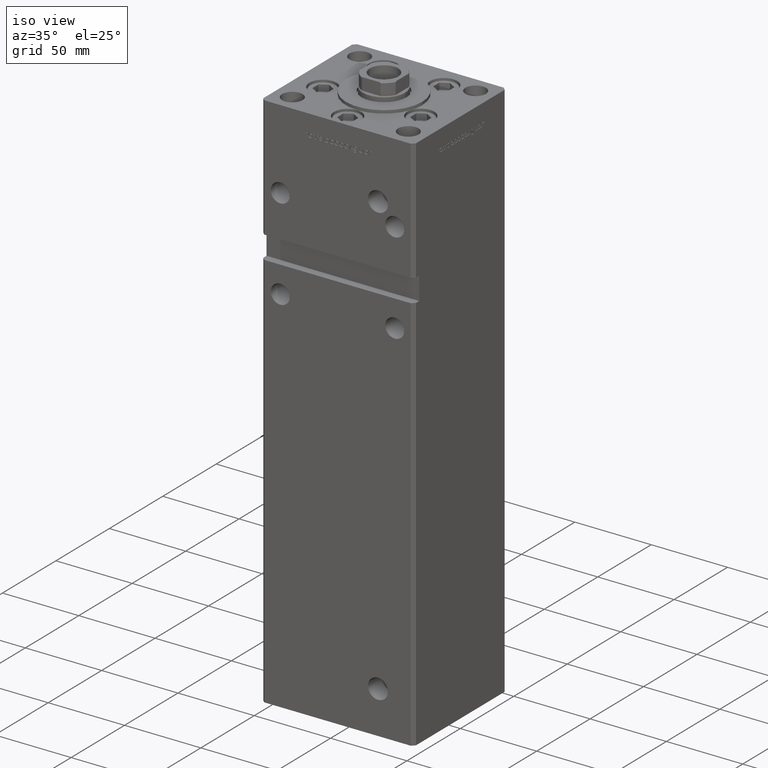
[diagram: clean part render]
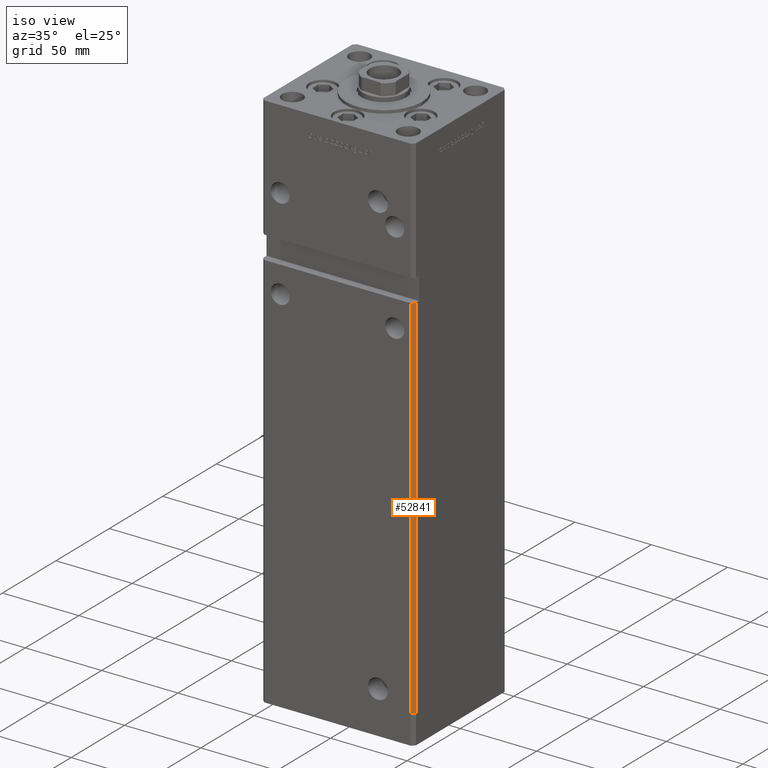
[diagram: same view with one face highlighted and labeled with its STEP entity id]
A machine part, iso view. The second image highlights one B-rep face of the part: STEP entity #52841.
In plain terms, the highlighted planar face has unit normal (0.7071, -0.7071, 0).
Its self-contained STEP definition (entity closure, byte-faithful):
#1585 = EDGE_LOOP ( 'NONE', ( #42196, #10895, #51295, #42815 ) ) ;
#1643 = VECTOR ( 'NONE', #48614, 1000.000000000000114 ) ;
#3471 = LINE ( 'NONE', #53173, #1643 ) ;
#6797 = CARTESIAN_POINT ( 'NONE',  ( 49.99999999999998579, -41.49999999999999289, 318.5000000000000000 ) ) ;
#7329 = EDGE_CURVE ( 'NONE', #38450, #40515, #19338, .T. ) ;
#7441 = LINE ( 'NONE', #52309, #37609 ) ;
#10895 = ORIENTED_EDGE ( 'NONE', *, *, #7329, .T. ) ;
#18156 = EDGE_CURVE ( 'NONE', #18215, #29472, #24683, .T. ) ;
#18215 = VERTEX_POINT ( 'NONE', #28708 ) ;
#18511 = DIRECTION ( 'NONE',  ( 0.7071067811865474617, 0.7071067811865474617, 0.000000000000000000 ) ) ;
#19338 = LINE ( 'NONE', #19596, #31103 ) ;
#19596 = CARTESIAN_POINT ( 'NONE',  ( 47.99999999999998579, -43.50000000000000000, 318.5000000000000000 ) ) ;
#24683 = LINE ( 'NONE', #6797, #52029 ) ;
#27650 = DIRECTION ( 'NONE',  ( -0.000000000000000000, -0.000000000000000000, -1.000000000000000000 ) ) ;
#28708 = CARTESIAN_POINT ( 'NONE',  ( 49.99999999999998579, -41.49999999999999289, 243.0000000000000000 ) ) ;
#28882 = EDGE_CURVE ( 'NONE', #38450, #18215, #7441, .T. ) ;
#29413 = AXIS2_PLACEMENT_3D ( 'NONE', #38942, #47814, #18511 ) ;
#29472 = VERTEX_POINT ( 'NONE', #50839 ) ;
#29713 = CARTESIAN_POINT ( 'NONE',  ( 47.99999999999998579, -43.50000000000000000, 243.0000000000000000 ) ) ;
#31103 = VECTOR ( 'NONE', #27650, 1000.000000000000000 ) ;
#34514 = CARTESIAN_POINT ( 'NONE',  ( 47.99999999999998579, -43.50000000000000000, 0.000000000000000000 ) ) ;
#37574 = EDGE_CURVE ( 'NONE', #29472, #40515, #3471, .T. ) ;
#37609 = VECTOR ( 'NONE', #41002, 1000.000000000000114 ) ;
#38450 = VERTEX_POINT ( 'NONE', #29713 ) ;
#38942 = CARTESIAN_POINT ( 'NONE',  ( 49.99999999999998579, -41.49999999999999289, 318.5000000000000000 ) ) ;
#40515 = VERTEX_POINT ( 'NONE', #34514 ) ;
#41002 = DIRECTION ( 'NONE',  ( 0.7071067811865474617, 0.7071067811865474617, 0.000000000000000000 ) ) ;
#42196 = ORIENTED_EDGE ( 'NONE', *, *, #28882, .F. ) ;
#42815 = ORIENTED_EDGE ( 'NONE', *, *, #18156, .F. ) ;
#45389 = DIRECTION ( 'NONE',  ( -0.000000000000000000, -0.000000000000000000, -1.000000000000000000 ) ) ;
#47282 = FACE_OUTER_BOUND ( 'NONE', #1585, .T. ) ;
#47814 = DIRECTION ( 'NONE',  ( 0.7071067811865475727, -0.7071067811865475727, 0.000000000000000000 ) ) ;
#48614 = DIRECTION ( 'NONE',  ( -0.7071067811865474617, -0.7071067811865474617, 0.000000000000000000 ) ) ;
#50775 = PLANE ( 'NONE',  #29413 ) ;
#50839 = CARTESIAN_POINT ( 'NONE',  ( 49.99999999999998579, -41.49999999999999289, 0.000000000000000000 ) ) ;
#51295 = ORIENTED_EDGE ( 'NONE', *, *, #37574, .F. ) ;
#52029 = VECTOR ( 'NONE', #45389, 1000.000000000000000 ) ;
#52309 = CARTESIAN_POINT ( 'NONE',  ( 49.99999999999998579, -41.49999999999999289, 243.0000000000000000 ) ) ;
#52841 = ADVANCED_FACE ( 'NONE', ( #47282 ), #50775, .T. ) ;
#53173 = CARTESIAN_POINT ( 'NONE',  ( 49.99999999999998579, -41.49999999999999289, 0.000000000000000000 ) ) ;